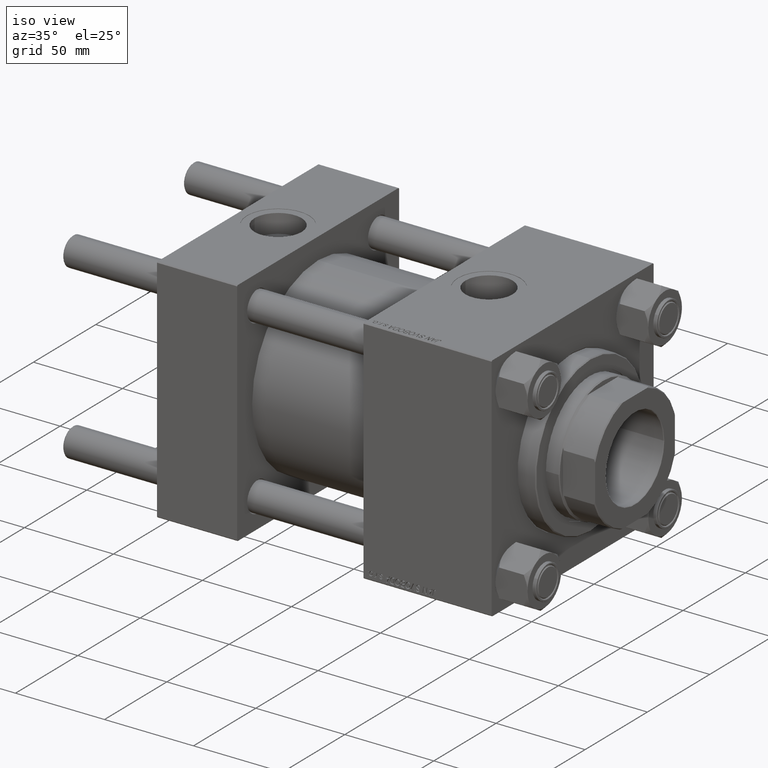
[diagram: clean part render]
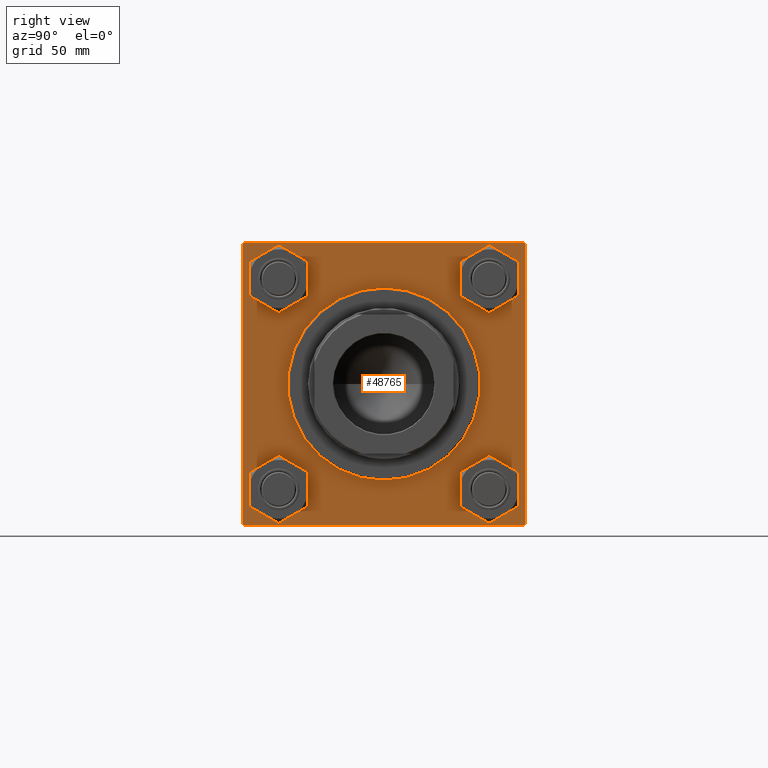
[diagram: tour spotlight — one face highlighted and labeled with its STEP entity id]
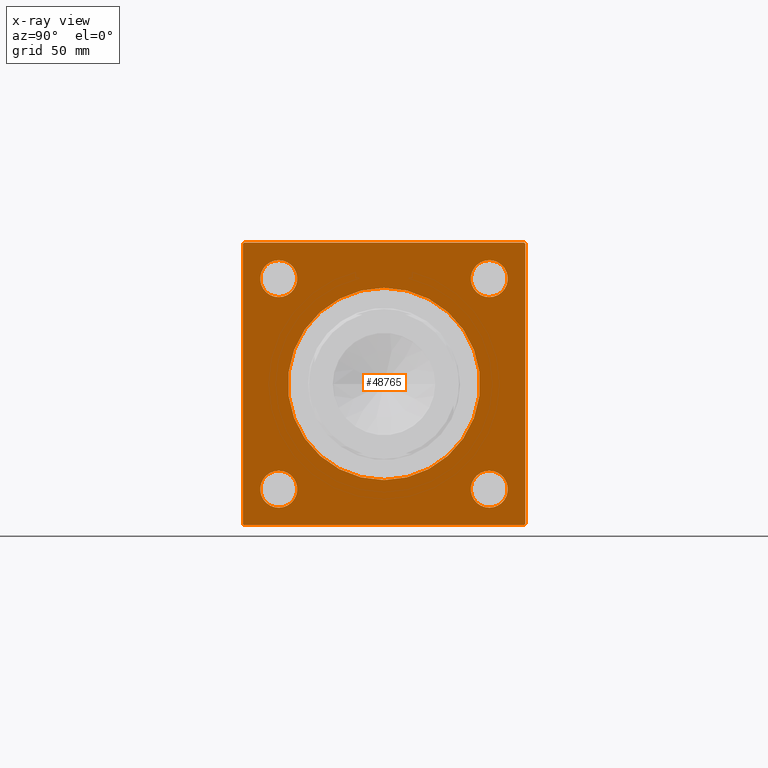
[diagram: x-ray of the same camera — body ghosted, this tour face saturated]
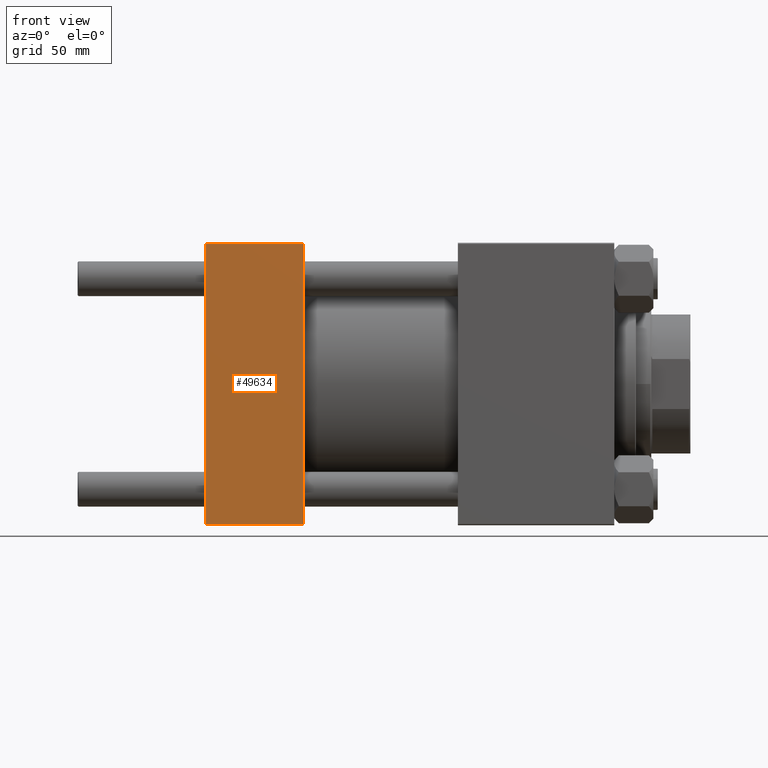
[diagram: tour spotlight — one face highlighted and labeled with its STEP entity id]
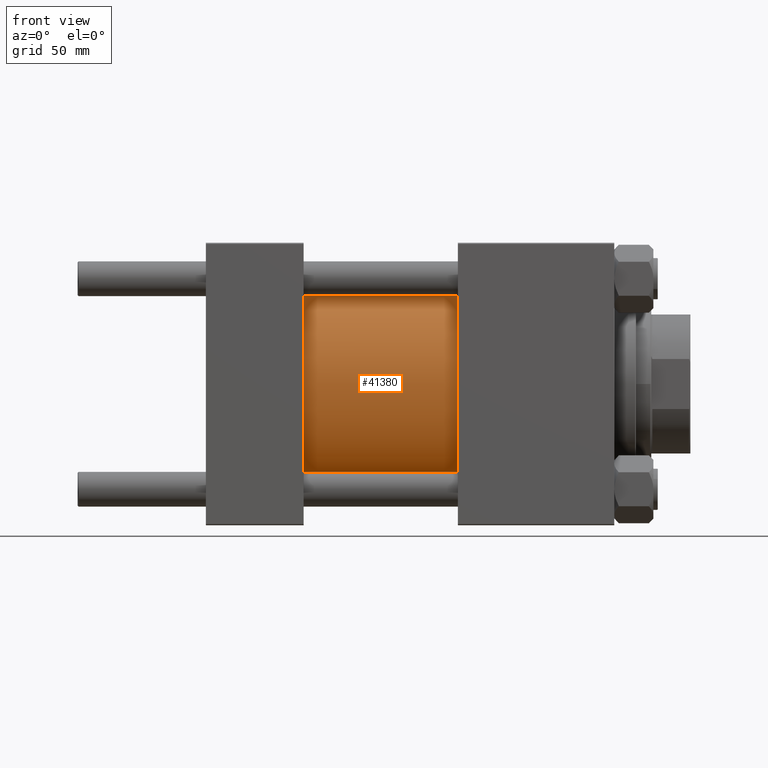
[diagram: tour spotlight — one face highlighted and labeled with its STEP entity id]
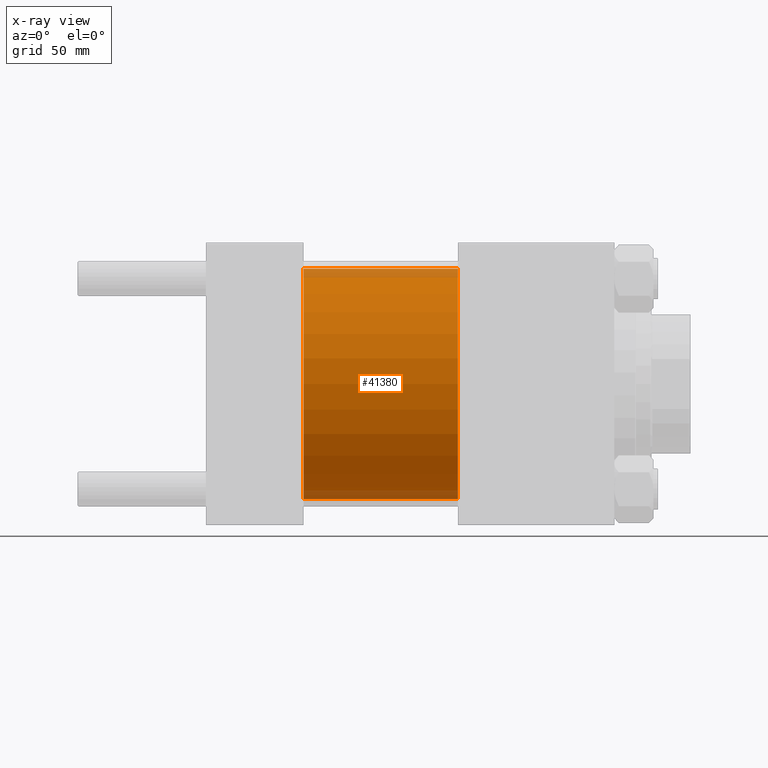
[diagram: x-ray of the same camera — body ghosted, this tour face saturated]
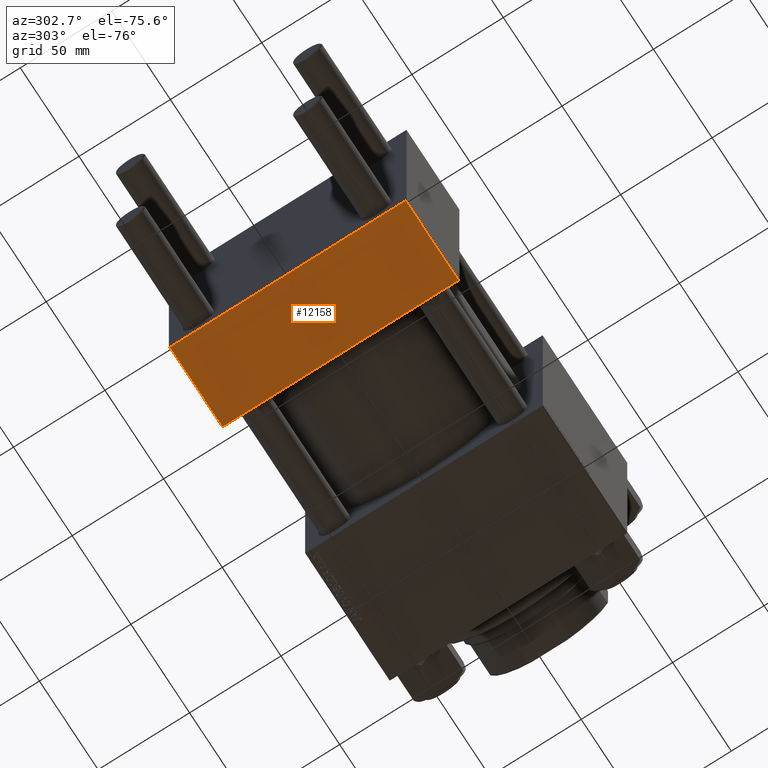
[diagram: tour spotlight — one face highlighted and labeled with its STEP entity id]
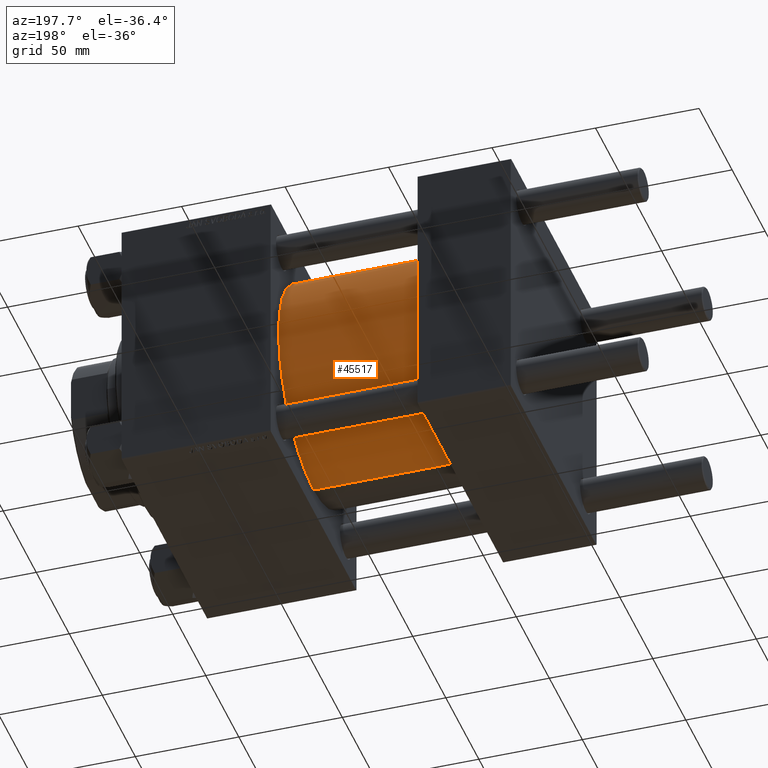
[diagram: tour spotlight — one face highlighted and labeled with its STEP entity id]
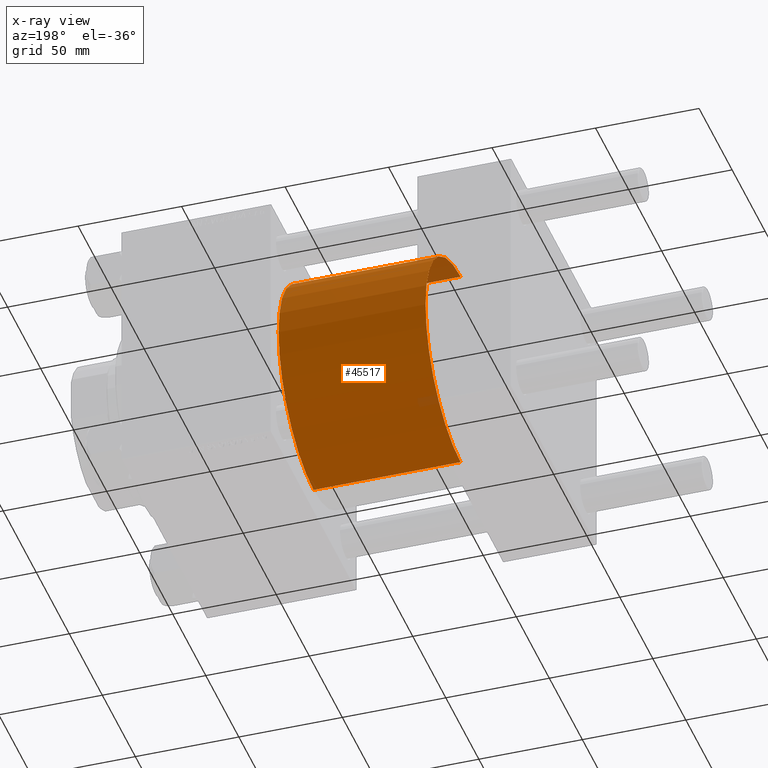
[diagram: x-ray of the same camera — body ghosted, this tour face saturated]
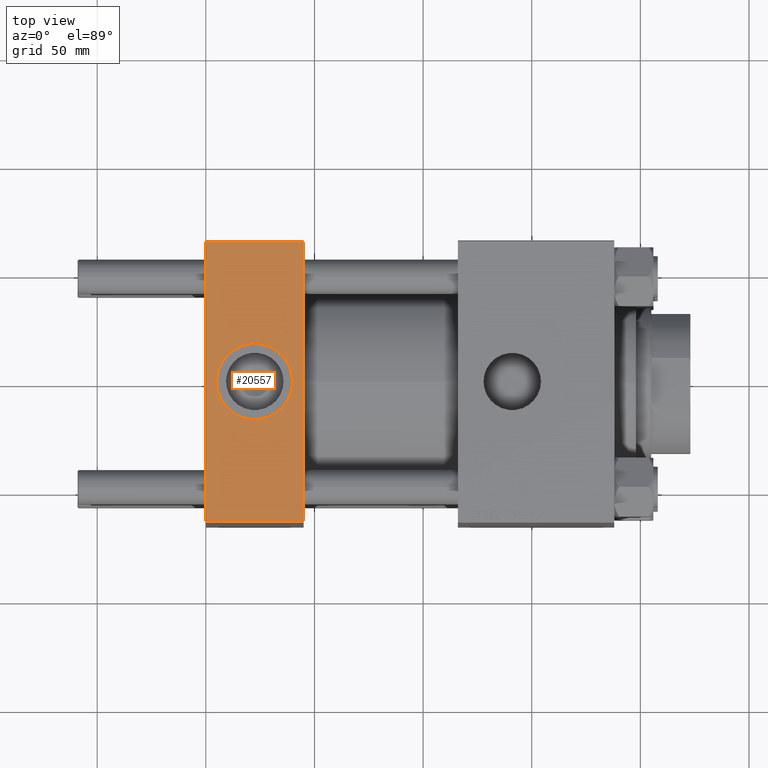
[diagram: tour spotlight — one face highlighted and labeled with its STEP entity id]
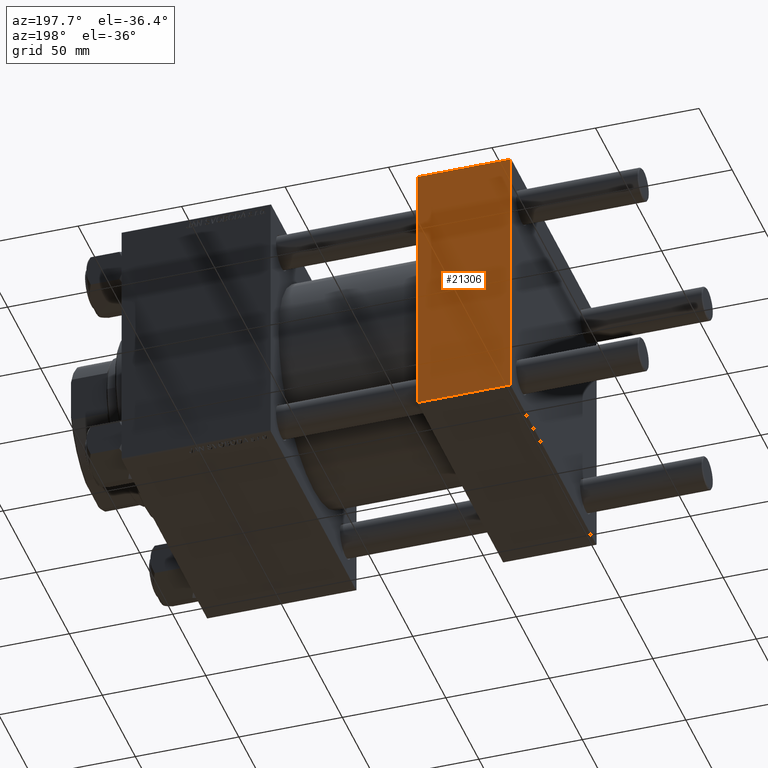
[diagram: tour spotlight — one face highlighted and labeled with its STEP entity id]
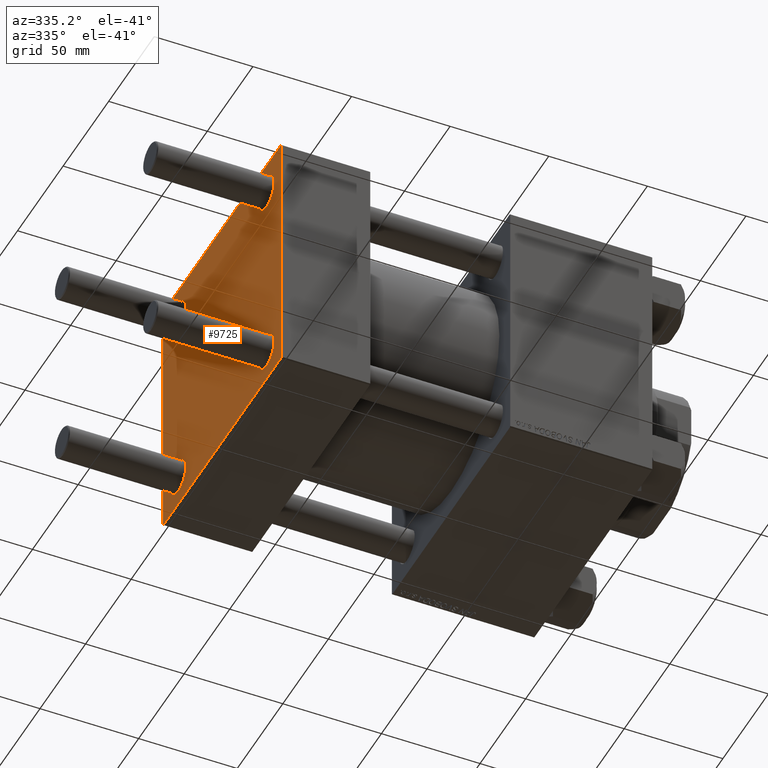
[diagram: tour spotlight — one face highlighted and labeled with its STEP entity id]
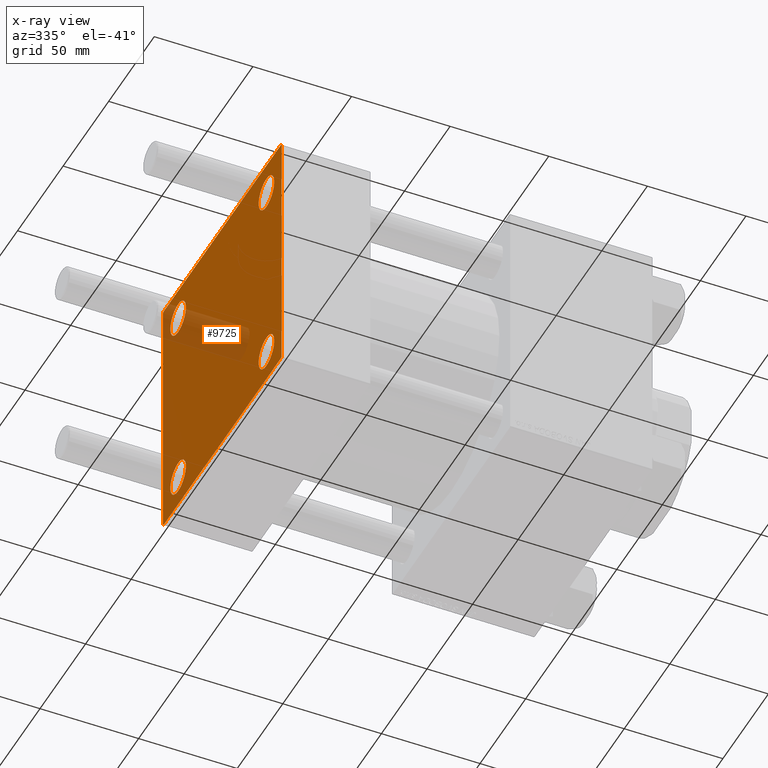
[diagram: x-ray of the same camera — body ghosted, this tour face saturated]
A machine part: a face-by-face anatomy tour. The part has 1182 B-rep faces; the first image is the clean iso view, then the 8 largest visible faces are spotlighted one at a time (largest first), each with its STEP entity span.

Face 1 — right view, entity #48765. An x-ray twin of the same camera follows (body ghosted, this face saturated) — the face is partly hidden behind the body. In plain terms, the highlighted planar face has unit normal (-1, 0, 0).
Definition (entity closure, byte-faithful):
#473 = DIRECTION ( 'NONE',  ( 0.000000000000000000, 0.000000000000000000, 1.000000000000000000 ) ) ;
#1765 = ORIENTED_EDGE ( 'NONE', *, *, #6280, .F. ) ;
#2040 = ORIENTED_EDGE ( 'NONE', *, *, #12327, .T. ) ;
#2387 = CARTESIAN_POINT ( 'NONE',  ( 188.0000000000000000, 65.00000000000002842, -64.50000000000001421 ) ) ;
#2675 = CARTESIAN_POINT ( 'NONE',  ( 188.0000000000000000, -64.99999999999998579, -64.50000000000002842 ) ) ;
#3145 = CARTESIAN_POINT ( 'NONE',  ( 188.0000000000000000, 48.45000000000000995, -48.45000000000001705 ) ) ;
#3459 = LINE ( 'NONE', #18937, #12133 ) ;
#3566 = ORIENTED_EDGE ( 'NONE', *, *, #45806, .T. ) ;
#3901 = CARTESIAN_POINT ( 'NONE',  ( 188.0000000000000000, 48.45000000000000995, -56.94999999999993889 ) ) ;
#3942 = AXIS2_PLACEMENT_3D ( 'NONE', #3145, #34147, #49671 ) ;
#4186 = EDGE_LOOP ( 'NONE', ( #9776, #37897 ) ) ;
#4687 = VECTOR ( 'NONE', #14000, 1000.000000000000000 ) ;
#4843 = VERTEX_POINT ( 'NONE', #13023 ) ;
#4883 = EDGE_CURVE ( 'NONE', #25592, #7312, #33826, .T. ) ;
#5061 = CARTESIAN_POINT ( 'NONE',  ( 188.0000000000000000, 0.000000000000000000, -44.24999999999998579 ) ) ;
#5090 = DIRECTION ( 'NONE',  ( 0.000000000000000000, 0.000000000000000000, 1.000000000000000000 ) ) ;
#5275 = VERTEX_POINT ( 'NONE', #33966 ) ;
#5627 = AXIS2_PLACEMENT_3D ( 'NONE', #40404, #37067, #5090 ) ;
#6280 = EDGE_CURVE ( 'NONE', #47462, #45450, #28749, .T. ) ;
#6312 = EDGE_CURVE ( 'NONE', #35777, #47724, #14370, .T. ) ;
#6435 = CARTESIAN_POINT ( 'NONE',  ( 188.0000000000000000, -64.99999999999998579, 64.50000000000008527 ) ) ;
#7312 = VERTEX_POINT ( 'NONE', #28705 ) ;
#7383 = DIRECTION ( 'NONE',  ( -1.000000000000000000, 0.000000000000000000, -0.000000000000000000 ) ) ;
#7705 = EDGE_CURVE ( 'NONE', #32050, #4843, #26596, .T. ) ;
#8296 = LINE ( 'NONE', #43868, #19649 ) ;
#8313 = EDGE_CURVE ( 'NONE', #26774, #25592, #29708, .T. ) ;
#8563 = ORIENTED_EDGE ( 'NONE', *, *, #6312, .T. ) ;
#8797 = CIRCLE ( 'NONE', #3942, 8.499999999999923617 ) ;
#8997 = CIRCLE ( 'NONE', #32533, 44.24999999999998579 ) ;
#9218 = DIRECTION ( 'NONE',  ( -1.000000000000000000, 0.000000000000000000, -0.000000000000000000 ) ) ;
#9442 = ORIENTED_EDGE ( 'NONE', *, *, #8313, .T. ) ;
#9629 = ORIENTED_EDGE ( 'NONE', *, *, #7705, .T. ) ;
#9776 = ORIENTED_EDGE ( 'NONE', *, *, #14702, .T. ) ;
#10181 = ORIENTED_EDGE ( 'NONE', *, *, #36045, .F. ) ;
#10199 = DIRECTION ( 'NONE',  ( 0.000000000000000000, 0.000000000000000000, 1.000000000000000000 ) ) ;
#10273 = DIRECTION ( 'NONE',  ( -1.000000000000000000, 0.000000000000000000, -0.000000000000000000 ) ) ;
#10363 = AXIS2_PLACEMENT_3D ( 'NONE', #49947, #10273, #26257 ) ;
#10806 = ORIENTED_EDGE ( 'NONE', *, *, #50310, .T. ) ;
#12053 = CARTESIAN_POINT ( 'NONE',  ( 188.0000000000000000, 0.000000000000000000, 0.000000000000000000 ) ) ;
#12133 = VECTOR ( 'NONE', #47163, 999.9999999999998863 ) ;
#12327 = EDGE_CURVE ( 'NONE', #47724, #35777, #29977, .T. ) ;
#12484 = DIRECTION ( 'NONE',  ( -1.000000000000000000, 0.000000000000000000, -0.000000000000000000 ) ) ;
#13023 = CARTESIAN_POINT ( 'NONE',  ( 188.0000000000000000, 48.45000000000000995, -39.95000000000008811 ) ) ;
#13529 = CARTESIAN_POINT ( 'NONE',  ( 188.0000000000000000, -64.50000000000008527, 65.00000000000000000 ) ) ;
#13650 = VECTOR ( 'NONE', #18276, 1000.000000000000000 ) ;
#13754 = DIRECTION ( 'NONE',  ( -1.000000000000000000, 0.000000000000000000, -0.000000000000000000 ) ) ;
#14000 = DIRECTION ( 'NONE',  ( 0.000000000000000000, 0.000000000000000000, -1.000000000000000000 ) ) ;
#14018 = CIRCLE ( 'NONE', #42467, 8.499999999999923617 ) ;
#14259 = CARTESIAN_POINT ( 'NONE',  ( 188.0000000000000000, 65.00000000000002842, 64.50000000000001421 ) ) ;
#14370 = CIRCLE ( 'NONE', #22500, 8.499999999999923617 ) ;
#14702 = EDGE_CURVE ( 'NONE', #41071, #35837, #8997, .T. ) ;
#14983 = DIRECTION ( 'NONE',  ( -0.000000000000000000, 0.000000000000000000, 1.000000000000000000 ) ) ;
#15400 = VECTOR ( 'NONE', #38646, 1000.000000000000000 ) ;
#15403 = AXIS2_PLACEMENT_3D ( 'NONE', #23916, #12484, #27974 ) ;
#15488 = CARTESIAN_POINT ( 'NONE',  ( 188.0000000000000000, 48.45000000000000995, 56.94999999999993889 ) ) ;
#15739 = FACE_BOUND ( 'NONE', #37242, .T. ) ;
#16017 = CARTESIAN_POINT ( 'NONE',  ( 188.0000000000000000, -48.44999999999999574, 39.95000000000010232 ) ) ;
#16656 = EDGE_CURVE ( 'NONE', #35259, #41499, #27553, .T. ) ;
#16874 = CARTESIAN_POINT ( 'NONE',  ( 188.0000000000000000, 64.50000000000005684, 65.00000000000001421 ) ) ;
#16881 = EDGE_LOOP ( 'NONE', ( #48708, #3566 ) ) ;
#17654 = EDGE_CURVE ( 'NONE', #47462, #35259, #8296, .T. ) ;
#18176 = CARTESIAN_POINT ( 'NONE',  ( 188.0000000000000000, -48.44999999999999574, 56.94999999999995310 ) ) ;
#18276 = DIRECTION ( 'NONE',  ( 0.000000000000000000, 0.000000000000000000, -1.000000000000000000 ) ) ;
#18937 = CARTESIAN_POINT ( 'NONE',  ( 188.0000000000000000, -64.99999999999998579, 64.50000000000008527 ) ) ;
#19210 = CARTESIAN_POINT ( 'NONE',  ( 188.0000000000000000, 65.00000000000002842, -64.99999999999998579 ) ) ;
#19649 = VECTOR ( 'NONE', #23780, 1000.000000000000000 ) ;
#19679 = EDGE_CURVE ( 'NONE', #35837, #41071, #40890, .T. ) ;
#20566 = AXIS2_PLACEMENT_3D ( 'NONE', #12053, #35701, #35949 ) ;
#21227 = CARTESIAN_POINT ( 'NONE',  ( 188.0000000000000000, -48.44999999999999574, -56.94999999999995310 ) ) ;
#22012 = DIRECTION ( 'NONE',  ( 0.000000000000000000, -1.000000000000000000, -2.135044278125300850E-16 ) ) ;
#22464 = DIRECTION ( 'NONE',  ( 0.000000000000000000, -1.000000000000000000, -1.067522139062650425E-16 ) ) ;
#22500 = AXIS2_PLACEMENT_3D ( 'NONE', #49811, #13754, #10199 ) ;
#23124 = FACE_BOUND ( 'NONE', #16881, .T. ) ;
#23377 = FACE_OUTER_BOUND ( 'NONE', #27792, .T. ) ;
#23628 = EDGE_CURVE ( 'NONE', #30582, #5275, #14018, .T. ) ;
#23780 = DIRECTION ( 'NONE',  ( 0.000000000000000000, -0.7071067811865279218, 0.7071067811865671127 ) ) ;
#23916 = CARTESIAN_POINT ( 'NONE',  ( 188.0000000000000000, 48.45000000000000995, 48.45000000000001705 ) ) ;
#24071 = VECTOR ( 'NONE', #22012, 1000.000000000000000 ) ;
#24463 = DIRECTION ( 'NONE',  ( 0.000000000000000000, 0.000000000000000000, 1.000000000000000000 ) ) ;
#24772 = ORIENTED_EDGE ( 'NONE', *, *, #43153, .T. ) ;
#25230 = VERTEX_POINT ( 'NONE', #16017 ) ;
#25348 = CARTESIAN_POINT ( 'NONE',  ( 188.0000000000000000, 64.50000000000002842, -64.99999999999998579 ) ) ;
#25399 = CARTESIAN_POINT ( 'NONE',  ( 188.0000000000000000, -64.99999999999998579, 65.00000000000000000 ) ) ;
#25592 = VERTEX_POINT ( 'NONE', #2675 ) ;
#26065 = AXIS2_PLACEMENT_3D ( 'NONE', #38909, #7383, #14983 ) ;
#26257 = DIRECTION ( 'NONE',  ( 0.000000000000000000, 0.000000000000000000, 1.000000000000000000 ) ) ;
#26408 = CARTESIAN_POINT ( 'NONE',  ( 188.0000000000000000, 65.00000000000002842, -64.50000000000001421 ) ) ;
#26596 = CIRCLE ( 'NONE', #10363, 8.499999999999923617 ) ;
#26774 = VERTEX_POINT ( 'NONE', #6435 ) ;
#27553 = LINE ( 'NONE', #43076, #27702 ) ;
#27702 = VECTOR ( 'NONE', #22464, 1000.000000000000000 ) ;
#27792 = EDGE_LOOP ( 'NONE', ( #9442, #39866, #10181, #48739, #1765, #29257, #31678, #33248 ) ) ;
#27974 = DIRECTION ( 'NONE',  ( 0.000000000000000000, 0.000000000000000000, 1.000000000000000000 ) ) ;
#28190 = DIRECTION ( 'NONE',  ( -1.000000000000000000, 0.000000000000000000, -0.000000000000000000 ) ) ;
#28310 = AXIS2_PLACEMENT_3D ( 'NONE', #43972, #28190, #32028 ) ;
#28520 = CARTESIAN_POINT ( 'NONE',  ( 188.0000000000000000, -48.44999999999999574, 48.45000000000003126 ) ) ;
#28705 = CARTESIAN_POINT ( 'NONE',  ( 188.0000000000000000, -64.50000000000002842, -65.00000000000001421 ) ) ;
#28749 = LINE ( 'NONE', #44775, #4687 ) ;
#29257 = ORIENTED_EDGE ( 'NONE', *, *, #17654, .T. ) ;
#29584 = VERTEX_POINT ( 'NONE', #25348 ) ;
#29708 = LINE ( 'NONE', #25399, #13650 ) ;
#29745 = VECTOR ( 'NONE', #45785, 1000.000000000000000 ) ;
#29977 = CIRCLE ( 'NONE', #15403, 8.499999999999923617 ) ;
#30387 = LINE ( 'NONE', #19210, #24071 ) ;
#30582 = VERTEX_POINT ( 'NONE', #21227 ) ;
#30749 = CIRCLE ( 'NONE', #32356, 8.499999999999923617 ) ;
#31205 = CARTESIAN_POINT ( 'NONE',  ( 188.0000000000000000, -48.44999999999999574, -48.45000000000003126 ) ) ;
#31678 = ORIENTED_EDGE ( 'NONE', *, *, #16656, .T. ) ;
#32028 = DIRECTION ( 'NONE',  ( 0.000000000000000000, 0.000000000000000000, 1.000000000000000000 ) ) ;
#32050 = VERTEX_POINT ( 'NONE', #3901 ) ;
#32250 = ORIENTED_EDGE ( 'NONE', *, *, #23628, .T. ) ;
#32356 = AXIS2_PLACEMENT_3D ( 'NONE', #28520, #47620, #24463 ) ;
#32533 = AXIS2_PLACEMENT_3D ( 'NONE', #36664, #9218, #40483 ) ;
#33248 = ORIENTED_EDGE ( 'NONE', *, *, #49402, .T. ) ;
#33826 = LINE ( 'NONE', #34088, #29745 ) ;
#33966 = CARTESIAN_POINT ( 'NONE',  ( 188.0000000000000000, -48.44999999999999574, -39.95000000000010232 ) ) ;
#34088 = CARTESIAN_POINT ( 'NONE',  ( 188.0000000000000000, -64.50000000000002842, -65.00000000000001421 ) ) ;
#34147 = DIRECTION ( 'NONE',  ( -1.000000000000000000, 0.000000000000000000, -0.000000000000000000 ) ) ;
#34321 = LINE ( 'NONE', #26408, #15400 ) ;
#35088 = FACE_BOUND ( 'NONE', #50292, .T. ) ;
#35259 = VERTEX_POINT ( 'NONE', #16874 ) ;
#35678 = CIRCLE ( 'NONE', #5627, 8.499999999999923617 ) ;
#35701 = DIRECTION ( 'NONE',  ( -1.000000000000000000, 0.000000000000000000, -0.000000000000000000 ) ) ;
#35777 = VERTEX_POINT ( 'NONE', #42168 ) ;
#35787 = DIRECTION ( 'NONE',  ( -1.000000000000000000, 0.000000000000000000, -0.000000000000000000 ) ) ;
#35837 = VERTEX_POINT ( 'NONE', #37844 ) ;
#35949 = DIRECTION ( 'NONE',  ( 0.000000000000000000, 0.000000000000000000, 1.000000000000000000 ) ) ;
#36045 = EDGE_CURVE ( 'NONE', #29584, #7312, #30387, .T. ) ;
#36664 = CARTESIAN_POINT ( 'NONE',  ( 188.0000000000000000, 0.000000000000000000, 0.000000000000000000 ) ) ;
#37067 = DIRECTION ( 'NONE',  ( -1.000000000000000000, 0.000000000000000000, -0.000000000000000000 ) ) ;
#37242 = EDGE_LOOP ( 'NONE', ( #9629, #10806 ) ) ;
#37844 = CARTESIAN_POINT ( 'NONE',  ( 188.0000000000000000, 5.419062086227035828E-15, 44.24999999999998579 ) ) ;
#37897 = ORIENTED_EDGE ( 'NONE', *, *, #19679, .T. ) ;
#38152 = PLANE ( 'NONE',  #26065 ) ;
#38398 = FACE_BOUND ( 'NONE', #4186, .T. ) ;
#38646 = DIRECTION ( 'NONE',  ( -0.000000000000000000, 0.7071067811865671127, 0.7071067811865279218 ) ) ;
#38909 = CARTESIAN_POINT ( 'NONE',  ( 188.0000000000000000, 0.000000000000000000, 0.000000000000000000 ) ) ;
#39866 = ORIENTED_EDGE ( 'NONE', *, *, #4883, .T. ) ;
#40404 = CARTESIAN_POINT ( 'NONE',  ( 188.0000000000000000, -48.44999999999999574, -48.45000000000003126 ) ) ;
#40483 = DIRECTION ( 'NONE',  ( 0.000000000000000000, 0.000000000000000000, 1.000000000000000000 ) ) ;
#40890 = CIRCLE ( 'NONE', #20566, 44.24999999999998579 ) ;
#41071 = VERTEX_POINT ( 'NONE', #5061 ) ;
#41081 = EDGE_LOOP ( 'NONE', ( #8563, #2040 ) ) ;
#41499 = VERTEX_POINT ( 'NONE', #13529 ) ;
#42168 = CARTESIAN_POINT ( 'NONE',  ( 188.0000000000000000, 48.45000000000000995, 39.95000000000008811 ) ) ;
#42215 = FACE_BOUND ( 'NONE', #41081, .T. ) ;
#42467 = AXIS2_PLACEMENT_3D ( 'NONE', #31205, #35787, #473 ) ;
#42656 = VERTEX_POINT ( 'NONE', #18176 ) ;
#43076 = CARTESIAN_POINT ( 'NONE',  ( 188.0000000000000000, 65.00000000000002842, 65.00000000000001421 ) ) ;
#43153 = EDGE_CURVE ( 'NONE', #5275, #30582, #35678, .T. ) ;
#43868 = CARTESIAN_POINT ( 'NONE',  ( 188.0000000000000000, 64.50000000000005684, 65.00000000000001421 ) ) ;
#43972 = CARTESIAN_POINT ( 'NONE',  ( 188.0000000000000000, -48.44999999999999574, 48.45000000000003126 ) ) ;
#44775 = CARTESIAN_POINT ( 'NONE',  ( 188.0000000000000000, 65.00000000000002842, 65.00000000000001421 ) ) ;
#44833 = EDGE_CURVE ( 'NONE', #25230, #42656, #30749, .T. ) ;
#45450 = VERTEX_POINT ( 'NONE', #2387 ) ;
#45785 = DIRECTION ( 'NONE',  ( 0.000000000000000000, 0.7071067811865279218, -0.7071067811865672237 ) ) ;
#45806 = EDGE_CURVE ( 'NONE', #42656, #25230, #48641, .T. ) ;
#47163 = DIRECTION ( 'NONE',  ( -0.000000000000000000, -0.7071067811865376918, -0.7071067811865574537 ) ) ;
#47462 = VERTEX_POINT ( 'NONE', #14259 ) ;
#47620 = DIRECTION ( 'NONE',  ( -1.000000000000000000, 0.000000000000000000, -0.000000000000000000 ) ) ;
#47674 = EDGE_CURVE ( 'NONE', #29584, #45450, #34321, .T. ) ;
#47724 = VERTEX_POINT ( 'NONE', #15488 ) ;
#48641 = CIRCLE ( 'NONE', #28310, 8.499999999999923617 ) ;
#48708 = ORIENTED_EDGE ( 'NONE', *, *, #44833, .T. ) ;
#48739 = ORIENTED_EDGE ( 'NONE', *, *, #47674, .T. ) ;
#48765 = ADVANCED_FACE ( 'NONE', ( #35088, #15739, #42215, #23124, #38398, #23377 ), #38152, .F. ) ;
#49402 = EDGE_CURVE ( 'NONE', #41499, #26774, #3459, .T. ) ;
#49671 = DIRECTION ( 'NONE',  ( 0.000000000000000000, 0.000000000000000000, 1.000000000000000000 ) ) ;
#49811 = CARTESIAN_POINT ( 'NONE',  ( 188.0000000000000000, 48.45000000000000995, 48.45000000000001705 ) ) ;
#49947 = CARTESIAN_POINT ( 'NONE',  ( 188.0000000000000000, 48.45000000000000995, -48.45000000000001705 ) ) ;
#50292 = EDGE_LOOP ( 'NONE', ( #32250, #24772 ) ) ;
#50310 = EDGE_CURVE ( 'NONE', #4843, #32050, #8797, .T. ) ;

Face 2 — front view, entity #49634. In plain terms, the highlighted planar face has unit normal (0, 1, 0).
Definition (entity closure, byte-faithful):
#887 = LINE ( 'NONE', #16849, #25686 ) ;
#4280 = ORIENTED_EDGE ( 'NONE', *, *, #49050, .T. ) ;
#5674 = ORIENTED_EDGE ( 'NONE', *, *, #34232, .F. ) ;
#6253 = VERTEX_POINT ( 'NONE', #28013 ) ;
#7197 = FACE_OUTER_BOUND ( 'NONE', #24103, .T. ) ;
#7577 = CARTESIAN_POINT ( 'NONE',  ( 45.00000000000000000, -65.00000000000000000, 65.00000000000000000 ) ) ;
#10009 = ORIENTED_EDGE ( 'NONE', *, *, #30995, .T. ) ;
#11298 = AXIS2_PLACEMENT_3D ( 'NONE', #14291, #37698, #15050 ) ;
#14291 = CARTESIAN_POINT ( 'NONE',  ( 45.00000000000000000, -65.00000000000000000, 65.00000000000000000 ) ) ;
#15050 = DIRECTION ( 'NONE',  ( 0.000000000000000000, -0.000000000000000000, 1.000000000000000000 ) ) ;
#15402 = VERTEX_POINT ( 'NONE', #34488 ) ;
#16038 = CARTESIAN_POINT ( 'NONE',  ( 45.00000000000000000, -65.00000000000000000, 64.50000000000000000 ) ) ;
#16608 = LINE ( 'NONE', #32134, #38543 ) ;
#16849 = CARTESIAN_POINT ( 'NONE',  ( 45.00000000000000000, -65.00000000000000000, 64.50000000000000000 ) ) ;
#22814 = LINE ( 'NONE', #7577, #31313 ) ;
#24103 = EDGE_LOOP ( 'NONE', ( #4280, #10009, #5674, #39591 ) ) ;
#25686 = VECTOR ( 'NONE', #28779, 1000.000000000000000 ) ;
#26107 = CARTESIAN_POINT ( 'NONE',  ( 0.000000000000000000, -65.00000000000000000, 65.00000000000000000 ) ) ;
#28013 = CARTESIAN_POINT ( 'NONE',  ( 0.000000000000000000, -65.00000000000000000, 64.50000000000000000 ) ) ;
#28779 = DIRECTION ( 'NONE',  ( -1.000000000000000000, 0.000000000000000000, 0.000000000000000000 ) ) ;
#30691 = DIRECTION ( 'NONE',  ( 0.000000000000000000, 0.000000000000000000, -1.000000000000000000 ) ) ;
#30995 = EDGE_CURVE ( 'NONE', #42861, #15402, #16608, .T. ) ;
#31313 = VECTOR ( 'NONE', #30691, 1000.000000000000000 ) ;
#31587 = VECTOR ( 'NONE', #42146, 1000.000000000000000 ) ;
#32134 = CARTESIAN_POINT ( 'NONE',  ( 45.00000000000000000, -65.00000000000000000, -64.49999999999991473 ) ) ;
#34232 = EDGE_CURVE ( 'NONE', #41781, #15402, #22814, .T. ) ;
#34488 = CARTESIAN_POINT ( 'NONE',  ( 45.00000000000000000, -65.00000000000000000, -64.49999999999991473 ) ) ;
#37456 = EDGE_CURVE ( 'NONE', #41781, #6253, #887, .T. ) ;
#37698 = DIRECTION ( 'NONE',  ( -0.000000000000000000, 1.000000000000000000, 0.000000000000000000 ) ) ;
#38543 = VECTOR ( 'NONE', #47650, 1000.000000000000000 ) ;
#39591 = ORIENTED_EDGE ( 'NONE', *, *, #37456, .T. ) ;
#40527 = CARTESIAN_POINT ( 'NONE',  ( 0.000000000000000000, -65.00000000000000000, -64.49999999999991473 ) ) ;
#41781 = VERTEX_POINT ( 'NONE', #16038 ) ;
#42146 = DIRECTION ( 'NONE',  ( 0.000000000000000000, 0.000000000000000000, -1.000000000000000000 ) ) ;
#42861 = VERTEX_POINT ( 'NONE', #40527 ) ;
#47650 = DIRECTION ( 'NONE',  ( 1.000000000000000000, 0.000000000000000000, 0.000000000000000000 ) ) ;
#49050 = EDGE_CURVE ( 'NONE', #6253, #42861, #49789, .T. ) ;
#49634 = ADVANCED_FACE ( 'NONE', ( #7197 ), #49915, .F. ) ;
#49789 = LINE ( 'NONE', #26107, #31587 ) ;
#49915 = PLANE ( 'NONE',  #11298 ) ;

Face 3 — front view, entity #41380. An x-ray twin of the same camera follows (body ghosted, this face saturated) — the face is partly hidden behind the body. In plain terms, the highlighted cylindrical surface (partial cylindrical patch) has radius 53 mm, axis along (-1, -0, -0).
Definition (entity closure, byte-faithful):
#1357 = CARTESIAN_POINT ( 'NONE',  ( 115.9999999999999858, 6.490628035480973107E-15, -53.00000000000000711 ) ) ;
#2262 = LINE ( 'NONE', #13937, #9531 ) ;
#2455 = EDGE_CURVE ( 'NONE', #48616, #23415, #2262, .T. ) ;
#2477 = ORIENTED_EDGE ( 'NONE', *, *, #44802, .F. ) ;
#2510 = CARTESIAN_POINT ( 'NONE',  ( 45.00000000000000000, 0.000000000000000000, 53.00000000000000711 ) ) ;
#4198 = DIRECTION ( 'NONE',  ( 1.000000000000000000, 0.000000000000000000, 0.000000000000000000 ) ) ;
#5849 = AXIS2_PLACEMENT_3D ( 'NONE', #15086, #4198, #42568 ) ;
#8083 = VERTEX_POINT ( 'NONE', #17324 ) ;
#9531 = VECTOR ( 'NONE', #28934, 1000.000000000000000 ) ;
#10616 = CIRCLE ( 'NONE', #30042, 53.00000000000000711 ) ;
#11387 = ORIENTED_EDGE ( 'NONE', *, *, #2455, .T. ) ;
#13937 = CARTESIAN_POINT ( 'NONE',  ( 115.9999999999999858, 0.000000000000000000, 53.00000000000000711 ) ) ;
#14846 = EDGE_CURVE ( 'NONE', #23415, #8083, #10616, .T. ) ;
#15086 = CARTESIAN_POINT ( 'NONE',  ( 115.9999999999999858, 0.000000000000000000, 0.000000000000000000 ) ) ;
#15414 = CARTESIAN_POINT ( 'NONE',  ( 115.9999999999999858, 0.000000000000000000, 0.000000000000000000 ) ) ;
#16024 = VERTEX_POINT ( 'NONE', #42947 ) ;
#17314 = DIRECTION ( 'NONE',  ( -1.000000000000000000, -0.000000000000000000, -0.000000000000000000 ) ) ;
#17324 = CARTESIAN_POINT ( 'NONE',  ( 45.00000000000000000, 6.490628035480973107E-15, -53.00000000000000711 ) ) ;
#19732 = FACE_OUTER_BOUND ( 'NONE', #41673, .T. ) ;
#21364 = EDGE_CURVE ( 'NONE', #48616, #16024, #42400, .T. ) ;
#21887 = DIRECTION ( 'NONE',  ( 0.000000000000000000, 0.000000000000000000, 1.000000000000000000 ) ) ;
#23415 = VERTEX_POINT ( 'NONE', #2510 ) ;
#24162 = ORIENTED_EDGE ( 'NONE', *, *, #14846, .T. ) ;
#28098 = DIRECTION ( 'NONE',  ( 0.000000000000000000, 0.000000000000000000, 1.000000000000000000 ) ) ;
#28934 = DIRECTION ( 'NONE',  ( -1.000000000000000000, -0.000000000000000000, -0.000000000000000000 ) ) ;
#30042 = AXIS2_PLACEMENT_3D ( 'NONE', #33344, #48860, #21887 ) ;
#31935 = DIRECTION ( 'NONE',  ( -1.000000000000000000, -0.000000000000000000, -0.000000000000000000 ) ) ;
#33344 = CARTESIAN_POINT ( 'NONE',  ( 45.00000000000000000, 0.000000000000000000, 0.000000000000000000 ) ) ;
#35502 = CYLINDRICAL_SURFACE ( 'NONE', #38065, 53.00000000000000711 ) ;
#38065 = AXIS2_PLACEMENT_3D ( 'NONE', #15414, #31935, #28098 ) ;
#40484 = LINE ( 'NONE', #1357, #48607 ) ;
#41380 = ADVANCED_FACE ( 'NONE', ( #19732 ), #35502, .T. ) ;
#41673 = EDGE_LOOP ( 'NONE', ( #2477, #46837, #11387, #24162 ) ) ;
#42400 = CIRCLE ( 'NONE', #5849, 53.00000000000000711 ) ;
#42568 = DIRECTION ( 'NONE',  ( 0.000000000000000000, 0.000000000000000000, -1.000000000000000000 ) ) ;
#42947 = CARTESIAN_POINT ( 'NONE',  ( 115.9999999999999858, 6.490628035480973107E-15, -53.00000000000000711 ) ) ;
#44802 = EDGE_CURVE ( 'NONE', #16024, #8083, #40484, .T. ) ;
#46837 = ORIENTED_EDGE ( 'NONE', *, *, #21364, .F. ) ;
#48607 = VECTOR ( 'NONE', #17314, 1000.000000000000000 ) ;
#48616 = VERTEX_POINT ( 'NONE', #49085 ) ;
#48860 = DIRECTION ( 'NONE',  ( 1.000000000000000000, -0.000000000000000000, 0.000000000000000000 ) ) ;
#49085 = CARTESIAN_POINT ( 'NONE',  ( 115.9999999999999858, 0.000000000000000000, 53.00000000000000711 ) ) ;

Face 4 — auxiliary view, entity #12158. In plain terms, the highlighted planar face has unit normal (0, 0, -1).
Definition (entity closure, byte-faithful):
#237 = LINE ( 'NONE', #42676, #12039 ) ;
#817 = AXIS2_PLACEMENT_3D ( 'NONE', #4937, #19667, #35184 ) ;
#2517 = ORIENTED_EDGE ( 'NONE', *, *, #32352, .T. ) ;
#2864 = VECTOR ( 'NONE', #42726, 1000.000000000000000 ) ;
#3438 = EDGE_CURVE ( 'NONE', #11257, #34951, #26040, .T. ) ;
#4937 = CARTESIAN_POINT ( 'NONE',  ( 45.00000000000000000, 65.00000000000000000, -64.99999999999998579 ) ) ;
#5389 = EDGE_LOOP ( 'NONE', ( #29906, #26169, #2517, #27030 ) ) ;
#6575 = CARTESIAN_POINT ( 'NONE',  ( 45.00000000000000000, 64.49999999999997158, -64.99999999999998579 ) ) ;
#9399 = EDGE_CURVE ( 'NONE', #11257, #29107, #237, .T. ) ;
#11257 = VERTEX_POINT ( 'NONE', #21582 ) ;
#11321 = CARTESIAN_POINT ( 'NONE',  ( 45.00000000000000000, 64.49999999999997158, -64.99999999999998579 ) ) ;
#12039 = VECTOR ( 'NONE', #50069, 1000.000000000000000 ) ;
#12158 = ADVANCED_FACE ( 'NONE', ( #43310 ), #24216, .T. ) ;
#18280 = CARTESIAN_POINT ( 'NONE',  ( 0.000000000000000000, -64.49999999999994316, -65.00000000000000000 ) ) ;
#18396 = VERTEX_POINT ( 'NONE', #41613 ) ;
#19667 = DIRECTION ( 'NONE',  ( 0.000000000000000000, 1.067522139062650548E-16, -1.000000000000000000 ) ) ;
#20015 = VECTOR ( 'NONE', #38778, 1000.000000000000000 ) ;
#21582 = CARTESIAN_POINT ( 'NONE',  ( 0.000000000000000000, 64.49999999999997158, -64.99999999999998579 ) ) ;
#22613 = EDGE_CURVE ( 'NONE', #18396, #29107, #34893, .T. ) ;
#22885 = LINE ( 'NONE', #38410, #2864 ) ;
#24216 = PLANE ( 'NONE',  #817 ) ;
#26040 = LINE ( 'NONE', #11321, #20015 ) ;
#26169 = ORIENTED_EDGE ( 'NONE', *, *, #3438, .T. ) ;
#27030 = ORIENTED_EDGE ( 'NONE', *, *, #22613, .T. ) ;
#29107 = VERTEX_POINT ( 'NONE', #18280 ) ;
#29906 = ORIENTED_EDGE ( 'NONE', *, *, #9399, .F. ) ;
#32352 = EDGE_CURVE ( 'NONE', #34951, #18396, #22885, .T. ) ;
#34893 = LINE ( 'NONE', #42263, #47299 ) ;
#34951 = VERTEX_POINT ( 'NONE', #6575 ) ;
#35184 = DIRECTION ( 'NONE',  ( 0.000000000000000000, 1.000000000000000000, 1.067522139062650548E-16 ) ) ;
#38410 = CARTESIAN_POINT ( 'NONE',  ( 45.00000000000000000, 65.00000000000000000, -64.99999999999998579 ) ) ;
#38778 = DIRECTION ( 'NONE',  ( 1.000000000000000000, 0.000000000000000000, 0.000000000000000000 ) ) ;
#41613 = CARTESIAN_POINT ( 'NONE',  ( 45.00000000000000000, -64.49999999999994316, -65.00000000000000000 ) ) ;
#42263 = CARTESIAN_POINT ( 'NONE',  ( 0.000000000000000000, -64.49999999999994316, -65.00000000000000000 ) ) ;
#42676 = CARTESIAN_POINT ( 'NONE',  ( 0.000000000000000000, 65.00000000000000000, -64.99999999999998579 ) ) ;
#42726 = DIRECTION ( 'NONE',  ( 0.000000000000000000, -1.000000000000000000, -1.067522139062650425E-16 ) ) ;
#43310 = FACE_OUTER_BOUND ( 'NONE', #5389, .T. ) ;
#46830 = DIRECTION ( 'NONE',  ( -1.000000000000000000, 0.000000000000000000, 0.000000000000000000 ) ) ;
#47299 = VECTOR ( 'NONE', #46830, 1000.000000000000000 ) ;
#50069 = DIRECTION ( 'NONE',  ( 0.000000000000000000, -1.000000000000000000, -1.067522139062650425E-16 ) ) ;

Face 5 — auxiliary view, entity #45517. An x-ray twin of the same camera follows (body ghosted, this face saturated) — the face is partly hidden behind the body. In plain terms, the highlighted cylindrical surface (partial cylindrical patch) has radius 53 mm, axis along (-1, -0, -0).
Definition (entity closure, byte-faithful):
#69 = EDGE_CURVE ( 'NONE', #8083, #23415, #43544, .T. ) ;
#1357 = CARTESIAN_POINT ( 'NONE',  ( 115.9999999999999858, 6.490628035480973107E-15, -53.00000000000000711 ) ) ;
#2262 = LINE ( 'NONE', #13937, #9531 ) ;
#2455 = EDGE_CURVE ( 'NONE', #48616, #23415, #2262, .T. ) ;
#2510 = CARTESIAN_POINT ( 'NONE',  ( 45.00000000000000000, 0.000000000000000000, 53.00000000000000711 ) ) ;
#2801 = ORIENTED_EDGE ( 'NONE', *, *, #2455, .F. ) ;
#5383 = EDGE_LOOP ( 'NONE', ( #26308, #29575, #45946, #2801 ) ) ;
#5457 = DIRECTION ( 'NONE',  ( 0.000000000000000000, 0.000000000000000000, 1.000000000000000000 ) ) ;
#8083 = VERTEX_POINT ( 'NONE', #17324 ) ;
#8486 = DIRECTION ( 'NONE',  ( 0.000000000000000000, 0.000000000000000000, -1.000000000000000000 ) ) ;
#9531 = VECTOR ( 'NONE', #28934, 1000.000000000000000 ) ;
#11264 = DIRECTION ( 'NONE',  ( 1.000000000000000000, -0.000000000000000000, 0.000000000000000000 ) ) ;
#13937 = CARTESIAN_POINT ( 'NONE',  ( 115.9999999999999858, 0.000000000000000000, 53.00000000000000711 ) ) ;
#16024 = VERTEX_POINT ( 'NONE', #42947 ) ;
#16348 = DIRECTION ( 'NONE',  ( 1.000000000000000000, 0.000000000000000000, 0.000000000000000000 ) ) ;
#17314 = DIRECTION ( 'NONE',  ( -1.000000000000000000, -0.000000000000000000, -0.000000000000000000 ) ) ;
#17324 = CARTESIAN_POINT ( 'NONE',  ( 45.00000000000000000, 6.490628035480973107E-15, -53.00000000000000711 ) ) ;
#18864 = EDGE_CURVE ( 'NONE', #16024, #48616, #46570, .T. ) ;
#21420 = FACE_OUTER_BOUND ( 'NONE', #5383, .T. ) ;
#21588 = AXIS2_PLACEMENT_3D ( 'NONE', #34403, #11264, #22944 ) ;
#22944 = DIRECTION ( 'NONE',  ( 0.000000000000000000, 0.000000000000000000, 1.000000000000000000 ) ) ;
#23415 = VERTEX_POINT ( 'NONE', #2510 ) ;
#24987 = CYLINDRICAL_SURFACE ( 'NONE', #43790, 53.00000000000000711 ) ;
#26308 = ORIENTED_EDGE ( 'NONE', *, *, #18864, .F. ) ;
#28934 = DIRECTION ( 'NONE',  ( -1.000000000000000000, -0.000000000000000000, -0.000000000000000000 ) ) ;
#29575 = ORIENTED_EDGE ( 'NONE', *, *, #44802, .T. ) ;
#34403 = CARTESIAN_POINT ( 'NONE',  ( 45.00000000000000000, 0.000000000000000000, 0.000000000000000000 ) ) ;
#40276 = DIRECTION ( 'NONE',  ( -1.000000000000000000, -0.000000000000000000, -0.000000000000000000 ) ) ;
#40484 = LINE ( 'NONE', #1357, #48607 ) ;
#40528 = CARTESIAN_POINT ( 'NONE',  ( 115.9999999999999858, 0.000000000000000000, 0.000000000000000000 ) ) ;
#42815 = CARTESIAN_POINT ( 'NONE',  ( 115.9999999999999858, 0.000000000000000000, 0.000000000000000000 ) ) ;
#42947 = CARTESIAN_POINT ( 'NONE',  ( 115.9999999999999858, 6.490628035480973107E-15, -53.00000000000000711 ) ) ;
#43544 = CIRCLE ( 'NONE', #21588, 53.00000000000000711 ) ;
#43790 = AXIS2_PLACEMENT_3D ( 'NONE', #40528, #40276, #5457 ) ;
#44802 = EDGE_CURVE ( 'NONE', #16024, #8083, #40484, .T. ) ;
#45517 = ADVANCED_FACE ( 'NONE', ( #21420 ), #24987, .T. ) ;
#45767 = AXIS2_PLACEMENT_3D ( 'NONE', #42815, #16348, #8486 ) ;
#45946 = ORIENTED_EDGE ( 'NONE', *, *, #69, .T. ) ;
#46570 = CIRCLE ( 'NONE', #45767, 53.00000000000000711 ) ;
#48607 = VECTOR ( 'NONE', #17314, 1000.000000000000000 ) ;
#48616 = VERTEX_POINT ( 'NONE', #49085 ) ;
#49085 = CARTESIAN_POINT ( 'NONE',  ( 115.9999999999999858, 0.000000000000000000, 53.00000000000000711 ) ) ;

Face 6 — top view, entity #20557. In plain terms, the highlighted planar face has unit normal (0, 0, -1).
Definition (entity closure, byte-faithful):
#331 = ORIENTED_EDGE ( 'NONE', *, *, #36030, .F. ) ;
#632 = VECTOR ( 'NONE', #7186, 1000.000000000000000 ) ;
#883 = VECTOR ( 'NONE', #37713, 1000.000000000000000 ) ;
#1259 = ORIENTED_EDGE ( 'NONE', *, *, #38581, .T. ) ;
#2148 = FACE_OUTER_BOUND ( 'NONE', #38344, .T. ) ;
#2251 = CARTESIAN_POINT ( 'NONE',  ( 0.000000000000000000, 64.49999999999997158, 65.00000000000001421 ) ) ;
#3664 = LINE ( 'NONE', #14814, #883 ) ;
#3885 = CARTESIAN_POINT ( 'NONE',  ( 45.00000000000000000, -64.49999999999997158, 65.00000000000000000 ) ) ;
#5033 = AXIS2_PLACEMENT_3D ( 'NONE', #25757, #29821, #29318 ) ;
#6284 = EDGE_CURVE ( 'NONE', #43144, #10044, #17813, .T. ) ;
#6474 = FACE_BOUND ( 'NONE', #41680, .T. ) ;
#7099 = CARTESIAN_POINT ( 'NONE',  ( 0.000000000000000000, -64.49999999999997158, 65.00000000000000000 ) ) ;
#7186 = DIRECTION ( 'NONE',  ( 1.000000000000000000, 0.000000000000000000, 0.000000000000000000 ) ) ;
#9142 = LINE ( 'NONE', #13681, #45971 ) ;
#9945 = DIRECTION ( 'NONE',  ( 0.000000000000000000, -1.000000000000000000, -1.067522139062650425E-16 ) ) ;
#10044 = VERTEX_POINT ( 'NONE', #7099 ) ;
#10254 = ORIENTED_EDGE ( 'NONE', *, *, #34812, .F. ) ;
#11485 = VERTEX_POINT ( 'NONE', #23410 ) ;
#12756 = VECTOR ( 'NONE', #9945, 1000.000000000000000 ) ;
#12782 = ORIENTED_EDGE ( 'NONE', *, *, #14514, .T. ) ;
#13681 = CARTESIAN_POINT ( 'NONE',  ( 45.00000000000000000, 65.00000000000000000, 65.00000000000001421 ) ) ;
#13826 = PLANE ( 'NONE',  #5033 ) ;
#14128 = DIRECTION ( 'NONE',  ( 1.000000000000000000, 0.000000000000000000, 0.000000000000000000 ) ) ;
#14514 = EDGE_CURVE ( 'NONE', #32621, #43144, #3664, .T. ) ;
#14814 = CARTESIAN_POINT ( 'NONE',  ( 0.000000000000000000, 64.49999999999997158, 65.00000000000001421 ) ) ;
#14883 = CARTESIAN_POINT ( 'NONE',  ( 22.50000000000000000, -8.673617379884035472E-15, 65.00000000000000000 ) ) ;
#15299 = CARTESIAN_POINT ( 'NONE',  ( 4.999999999999997335, -6.530485481376167224E-15, 65.00000000000000000 ) ) ;
#15317 = DIRECTION ( 'NONE',  ( 1.000000000000000000, 0.000000000000000000, 0.000000000000000000 ) ) ;
#17813 = LINE ( 'NONE', #34792, #12756 ) ;
#18213 = CARTESIAN_POINT ( 'NONE',  ( 40.00000000000000000, -8.673617379884035472E-15, 65.00000000000000000 ) ) ;
#19241 = VERTEX_POINT ( 'NONE', #18213 ) ;
#20557 = ADVANCED_FACE ( 'NONE', ( #6474, #2148 ), #13826, .F. ) ;
#20810 = DIRECTION ( 'NONE',  ( 0.000000000000000000, -1.000000000000000000, -1.067522139062650425E-16 ) ) ;
#22510 = DIRECTION ( 'NONE',  ( 0.000000000000000000, 0.000000000000000000, 1.000000000000000000 ) ) ;
#22915 = ORIENTED_EDGE ( 'NONE', *, *, #43916, .F. ) ;
#23410 = CARTESIAN_POINT ( 'NONE',  ( 45.00000000000000000, -64.49999999999997158, 65.00000000000000000 ) ) ;
#23831 = CARTESIAN_POINT ( 'NONE',  ( 45.00000000000000000, 64.49999999999997158, 65.00000000000001421 ) ) ;
#25757 = CARTESIAN_POINT ( 'NONE',  ( 45.00000000000000000, 65.00000000000000000, 65.00000000000001421 ) ) ;
#26491 = DIRECTION ( 'NONE',  ( 0.000000000000000000, 0.000000000000000000, 1.000000000000000000 ) ) ;
#26632 = AXIS2_PLACEMENT_3D ( 'NONE', #35166, #26491, #15317 ) ;
#26990 = LINE ( 'NONE', #3885, #632 ) ;
#29318 = DIRECTION ( 'NONE',  ( 0.000000000000000000, 1.000000000000000000, 1.067522139062650548E-16 ) ) ;
#29821 = DIRECTION ( 'NONE',  ( 0.000000000000000000, 1.067522139062650548E-16, -1.000000000000000000 ) ) ;
#31058 = VERTEX_POINT ( 'NONE', #15299 ) ;
#32621 = VERTEX_POINT ( 'NONE', #23831 ) ;
#33254 = CIRCLE ( 'NONE', #26632, 17.50000000000000000 ) ;
#34792 = CARTESIAN_POINT ( 'NONE',  ( 0.000000000000000000, 65.00000000000000000, 65.00000000000001421 ) ) ;
#34812 = EDGE_CURVE ( 'NONE', #32621, #11485, #9142, .T. ) ;
#35166 = CARTESIAN_POINT ( 'NONE',  ( 22.50000000000000000, -8.673617379884035472E-15, 65.00000000000000000 ) ) ;
#36030 = EDGE_CURVE ( 'NONE', #31058, #19241, #46008, .T. ) ;
#37713 = DIRECTION ( 'NONE',  ( -1.000000000000000000, 0.000000000000000000, 0.000000000000000000 ) ) ;
#38344 = EDGE_LOOP ( 'NONE', ( #44668, #1259, #10254, #12782 ) ) ;
#38581 = EDGE_CURVE ( 'NONE', #10044, #11485, #26990, .T. ) ;
#41680 = EDGE_LOOP ( 'NONE', ( #22915, #331 ) ) ;
#42751 = AXIS2_PLACEMENT_3D ( 'NONE', #14883, #22510, #14128 ) ;
#43144 = VERTEX_POINT ( 'NONE', #2251 ) ;
#43916 = EDGE_CURVE ( 'NONE', #19241, #31058, #33254, .T. ) ;
#44668 = ORIENTED_EDGE ( 'NONE', *, *, #6284, .T. ) ;
#45971 = VECTOR ( 'NONE', #20810, 1000.000000000000000 ) ;
#46008 = CIRCLE ( 'NONE', #42751, 17.50000000000000000 ) ;

Face 7 — auxiliary view, entity #21306. In plain terms, the highlighted planar face has unit normal (0, 1, 0).
Definition (entity closure, byte-faithful):
#3834 = ORIENTED_EDGE ( 'NONE', *, *, #8466, .F. ) ;
#3842 = CARTESIAN_POINT ( 'NONE',  ( 0.000000000000000000, 65.00000000000000000, 64.49999999999998579 ) ) ;
#5558 = DIRECTION ( 'NONE',  ( 0.000000000000000000, 0.000000000000000000, -1.000000000000000000 ) ) ;
#7768 = CARTESIAN_POINT ( 'NONE',  ( 45.00000000000000000, 65.00000000000000000, 64.49999999999998579 ) ) ;
#8039 = EDGE_LOOP ( 'NONE', ( #9493, #30817, #3834, #38432 ) ) ;
#8466 = EDGE_CURVE ( 'NONE', #32300, #49990, #47763, .T. ) ;
#9493 = ORIENTED_EDGE ( 'NONE', *, *, #27366, .T. ) ;
#11274 = VECTOR ( 'NONE', #30803, 1000.000000000000000 ) ;
#14589 = CARTESIAN_POINT ( 'NONE',  ( 45.00000000000000000, 65.00000000000000000, 65.00000000000001421 ) ) ;
#18184 = CARTESIAN_POINT ( 'NONE',  ( 0.000000000000000000, 65.00000000000000000, -64.49999999999995737 ) ) ;
#18399 = FACE_OUTER_BOUND ( 'NONE', #8039, .T. ) ;
#18663 = DIRECTION ( 'NONE',  ( -0.000000000000000000, 1.000000000000000000, 0.000000000000000000 ) ) ;
#18845 = CARTESIAN_POINT ( 'NONE',  ( 45.00000000000000000, 65.00000000000000000, -64.49999999999995737 ) ) ;
#19453 = DIRECTION ( 'NONE',  ( 1.000000000000000000, 0.000000000000000000, 0.000000000000000000 ) ) ;
#21306 = ADVANCED_FACE ( 'NONE', ( #18399 ), #33922, .T. ) ;
#23681 = VERTEX_POINT ( 'NONE', #39106 ) ;
#25082 = VECTOR ( 'NONE', #19453, 1000.000000000000000 ) ;
#26727 = LINE ( 'NONE', #42258, #11274 ) ;
#27065 = LINE ( 'NONE', #7768, #25082 ) ;
#27366 = EDGE_CURVE ( 'NONE', #23681, #47526, #49973, .T. ) ;
#27570 = CARTESIAN_POINT ( 'NONE',  ( 45.00000000000000000, 65.00000000000000000, 65.00000000000001421 ) ) ;
#30803 = DIRECTION ( 'NONE',  ( -1.000000000000000000, 0.000000000000000000, 0.000000000000000000 ) ) ;
#30817 = ORIENTED_EDGE ( 'NONE', *, *, #41590, .T. ) ;
#32300 = VERTEX_POINT ( 'NONE', #3842 ) ;
#32497 = CARTESIAN_POINT ( 'NONE',  ( 0.000000000000000000, 65.00000000000000000, 65.00000000000001421 ) ) ;
#33922 = PLANE ( 'NONE',  #44807 ) ;
#34177 = DIRECTION ( 'NONE',  ( 0.000000000000000000, -0.000000000000000000, 1.000000000000000000 ) ) ;
#34200 = DIRECTION ( 'NONE',  ( 0.000000000000000000, 0.000000000000000000, -1.000000000000000000 ) ) ;
#37691 = VECTOR ( 'NONE', #34200, 1000.000000000000000 ) ;
#38432 = ORIENTED_EDGE ( 'NONE', *, *, #42738, .T. ) ;
#39106 = CARTESIAN_POINT ( 'NONE',  ( 45.00000000000000000, 65.00000000000000000, 64.49999999999998579 ) ) ;
#41590 = EDGE_CURVE ( 'NONE', #47526, #49990, #26727, .T. ) ;
#42078 = VECTOR ( 'NONE', #5558, 1000.000000000000000 ) ;
#42258 = CARTESIAN_POINT ( 'NONE',  ( 45.00000000000000000, 65.00000000000000000, -64.49999999999995737 ) ) ;
#42738 = EDGE_CURVE ( 'NONE', #32300, #23681, #27065, .T. ) ;
#44807 = AXIS2_PLACEMENT_3D ( 'NONE', #14589, #18663, #34177 ) ;
#47526 = VERTEX_POINT ( 'NONE', #18845 ) ;
#47763 = LINE ( 'NONE', #32497, #42078 ) ;
#49973 = LINE ( 'NONE', #27570, #37691 ) ;
#49990 = VERTEX_POINT ( 'NONE', #18184 ) ;

Face 8 — auxiliary view, entity #9725. An x-ray twin of the same camera follows (body ghosted, this face saturated) — the face is partly hidden behind the body. In plain terms, the highlighted planar face has unit normal (-1, 0, 0).
Definition (entity closure, byte-faithful):
#237 = LINE ( 'NONE', #42676, #12039 ) ;
#360 = DIRECTION ( 'NONE',  ( -0.000000000000000000, -0.7071067811865474617, -0.7071067811865474617 ) ) ;
#743 = AXIS2_PLACEMENT_3D ( 'NONE', #47431, #12846, #13334 ) ;
#946 = VERTEX_POINT ( 'NONE', #43463 ) ;
#1136 = DIRECTION ( 'NONE',  ( 0.000000000000000000, 0.000000000000000000, 1.000000000000000000 ) ) ;
#1179 = LINE ( 'NONE', #24279, #48849 ) ;
#1771 = DIRECTION ( 'NONE',  ( 1.000000000000000000, -0.000000000000000000, 0.000000000000000000 ) ) ;
#2251 = CARTESIAN_POINT ( 'NONE',  ( 0.000000000000000000, 64.49999999999997158, 65.00000000000001421 ) ) ;
#2529 = DIRECTION ( 'NONE',  ( 0.000000000000000000, 0.7071067811865474617, -0.7071067811865474617 ) ) ;
#2937 = AXIS2_PLACEMENT_3D ( 'NONE', #31535, #47056, #12705 ) ;
#3188 = CIRCLE ( 'NONE', #37289, 8.500000000000007105 ) ;
#3391 = AXIS2_PLACEMENT_3D ( 'NONE', #10154, #22336, #41164 ) ;
#3842 = CARTESIAN_POINT ( 'NONE',  ( 0.000000000000000000, 65.00000000000000000, 64.49999999999998579 ) ) ;
#4352 = CARTESIAN_POINT ( 'NONE',  ( 0.000000000000000000, 48.45000000000000995, -48.45000000000001705 ) ) ;
#4956 = DIRECTION ( 'NONE',  ( 1.000000000000000000, -0.000000000000000000, 0.000000000000000000 ) ) ;
#4994 = DIRECTION ( 'NONE',  ( -0.000000000000000000, 0.7071067811865672237, 0.7071067811865279218 ) ) ;
#5558 = DIRECTION ( 'NONE',  ( 0.000000000000000000, 0.000000000000000000, -1.000000000000000000 ) ) ;
#5563 = EDGE_CURVE ( 'NONE', #31655, #8050, #28131, .T. ) ;
#6074 = DIRECTION ( 'NONE',  ( 0.000000000000000000, 0.000000000000000000, 1.000000000000000000 ) ) ;
#6083 = CARTESIAN_POINT ( 'NONE',  ( 0.000000000000000000, 64.74999999999998579, 64.74999999999998579 ) ) ;
#6253 = VERTEX_POINT ( 'NONE', #28013 ) ;
#6284 = EDGE_CURVE ( 'NONE', #43144, #10044, #17813, .T. ) ;
#6399 = DIRECTION ( 'NONE',  ( 0.000000000000000000, 0.000000000000000000, 1.000000000000000000 ) ) ;
#7099 = CARTESIAN_POINT ( 'NONE',  ( 0.000000000000000000, -64.49999999999997158, 65.00000000000000000 ) ) ;
#8050 = VERTEX_POINT ( 'NONE', #13523 ) ;
#8232 = LINE ( 'NONE', #35173, #16049 ) ;
#8442 = CARTESIAN_POINT ( 'NONE',  ( 0.000000000000000000, 48.45000000000000995, -56.95000000000002416 ) ) ;
#8466 = EDGE_CURVE ( 'NONE', #32300, #49990, #47763, .T. ) ;
#8508 = ORIENTED_EDGE ( 'NONE', *, *, #20402, .T. ) ;
#8582 = EDGE_LOOP ( 'NONE', ( #33614, #42175, #28841, #44731, #32136, #8508, #25984, #43250 ) ) ;
#9042 = FACE_BOUND ( 'NONE', #16360, .T. ) ;
#9160 = EDGE_CURVE ( 'NONE', #43144, #32300, #37848, .T. ) ;
#9399 = EDGE_CURVE ( 'NONE', #11257, #29107, #237, .T. ) ;
#9725 = ADVANCED_FACE ( 'NONE', ( #16398, #9042, #16890, #36489, #31677 ), #47683, .T. ) ;
#9881 = CARTESIAN_POINT ( 'NONE',  ( 0.000000000000000000, -48.44999999999999574, 48.45000000000003126 ) ) ;
#9945 = DIRECTION ( 'NONE',  ( 0.000000000000000000, -1.000000000000000000, -1.067522139062650425E-16 ) ) ;
#10044 = VERTEX_POINT ( 'NONE', #7099 ) ;
#10154 = CARTESIAN_POINT ( 'NONE',  ( 0.000000000000000000, 48.45000000000000995, -48.45000000000001705 ) ) ;
#11257 = VERTEX_POINT ( 'NONE', #21582 ) ;
#12039 = VECTOR ( 'NONE', #50069, 1000.000000000000000 ) ;
#12705 = DIRECTION ( 'NONE',  ( 0.000000000000000000, 0.000000000000000000, 1.000000000000000000 ) ) ;
#12756 = VECTOR ( 'NONE', #9945, 1000.000000000000000 ) ;
#12846 = DIRECTION ( 'NONE',  ( -1.000000000000000000, 0.000000000000000000, -0.000000000000000000 ) ) ;
#12908 = CIRCLE ( 'NONE', #19394, 8.500000000000007105 ) ;
#13334 = DIRECTION ( 'NONE',  ( -0.000000000000000000, 0.000000000000000000, 1.000000000000000000 ) ) ;
#13441 = DIRECTION ( 'NONE',  ( 0.000000000000000000, 0.000000000000000000, 1.000000000000000000 ) ) ;
#13523 = CARTESIAN_POINT ( 'NONE',  ( 0.000000000000000000, 48.45000000000000995, 39.95000000000000284 ) ) ;
#14143 = EDGE_CURVE ( 'NONE', #16943, #41310, #38204, .T. ) ;
#14198 = EDGE_CURVE ( 'NONE', #8050, #31655, #30893, .T. ) ;
#14307 = CARTESIAN_POINT ( 'NONE',  ( 0.000000000000000000, 48.45000000000000995, -39.95000000000000284 ) ) ;
#15439 = CARTESIAN_POINT ( 'NONE',  ( 0.000000000000000000, -64.75000000000176215, -64.74999999999816680 ) ) ;
#15788 = CARTESIAN_POINT ( 'NONE',  ( 0.000000000000000000, -48.44999999999999574, 39.95000000000001705 ) ) ;
#16049 = VECTOR ( 'NONE', #360, 1000.000000000000114 ) ;
#16271 = AXIS2_PLACEMENT_3D ( 'NONE', #43727, #24639, #32282 ) ;
#16360 = EDGE_LOOP ( 'NONE', ( #27748, #25882 ) ) ;
#16398 = FACE_BOUND ( 'NONE', #19510, .T. ) ;
#16890 = FACE_BOUND ( 'NONE', #31963, .T. ) ;
#16943 = VERTEX_POINT ( 'NONE', #27205 ) ;
#17073 = DIRECTION ( 'NONE',  ( 1.000000000000000000, -0.000000000000000000, 0.000000000000000000 ) ) ;
#17813 = LINE ( 'NONE', #34792, #12756 ) ;
#18184 = CARTESIAN_POINT ( 'NONE',  ( 0.000000000000000000, 65.00000000000000000, -64.49999999999995737 ) ) ;
#18280 = CARTESIAN_POINT ( 'NONE',  ( 0.000000000000000000, -64.49999999999994316, -65.00000000000000000 ) ) ;
#18702 = AXIS2_PLACEMENT_3D ( 'NONE', #47395, #4956, #1136 ) ;
#19394 = AXIS2_PLACEMENT_3D ( 'NONE', #24128, #1771, #13441 ) ;
#19510 = EDGE_LOOP ( 'NONE', ( #33606, #29757 ) ) ;
#20402 = EDGE_CURVE ( 'NONE', #6253, #10044, #1179, .T. ) ;
#20779 = EDGE_CURVE ( 'NONE', #37838, #24854, #49697, .T. ) ;
#21582 = CARTESIAN_POINT ( 'NONE',  ( 0.000000000000000000, 64.49999999999997158, -64.99999999999998579 ) ) ;
#21623 = CARTESIAN_POINT ( 'NONE',  ( 0.000000000000000000, 48.45000000000000995, 48.45000000000001705 ) ) ;
#21767 = VECTOR ( 'NONE', #2529, 1000.000000000000114 ) ;
#22336 = DIRECTION ( 'NONE',  ( 1.000000000000000000, -0.000000000000000000, 0.000000000000000000 ) ) ;
#22661 = ORIENTED_EDGE ( 'NONE', *, *, #45601, .T. ) ;
#24128 = CARTESIAN_POINT ( 'NONE',  ( 0.000000000000000000, -48.44999999999999574, 48.45000000000003126 ) ) ;
#24279 = CARTESIAN_POINT ( 'NONE',  ( -0.000000000000000000, -64.74999999999819522, 64.75000000000179057 ) ) ;
#24639 = DIRECTION ( 'NONE',  ( 1.000000000000000000, -0.000000000000000000, 0.000000000000000000 ) ) ;
#24854 = VERTEX_POINT ( 'NONE', #14307 ) ;
#25882 = ORIENTED_EDGE ( 'NONE', *, *, #35645, .T. ) ;
#25984 = ORIENTED_EDGE ( 'NONE', *, *, #6284, .F. ) ;
#26107 = CARTESIAN_POINT ( 'NONE',  ( 0.000000000000000000, -65.00000000000000000, 65.00000000000000000 ) ) ;
#27205 = CARTESIAN_POINT ( 'NONE',  ( 0.000000000000000000, -48.44999999999999574, -39.95000000000001705 ) ) ;
#27234 = ORIENTED_EDGE ( 'NONE', *, *, #14198, .T. ) ;
#27568 = ORIENTED_EDGE ( 'NONE', *, *, #5563, .T. ) ;
#27748 = ORIENTED_EDGE ( 'NONE', *, *, #14143, .T. ) ;
#28013 = CARTESIAN_POINT ( 'NONE',  ( 0.000000000000000000, -65.00000000000000000, 64.50000000000000000 ) ) ;
#28131 = CIRCLE ( 'NONE', #46042, 8.500000000000007105 ) ;
#28354 = VECTOR ( 'NONE', #38340, 1000.000000000000000 ) ;
#28841 = ORIENTED_EDGE ( 'NONE', *, *, #9399, .T. ) ;
#29107 = VERTEX_POINT ( 'NONE', #18280 ) ;
#29655 = EDGE_LOOP ( 'NONE', ( #27568, #27234 ) ) ;
#29757 = ORIENTED_EDGE ( 'NONE', *, *, #45769, .T. ) ;
#30893 = CIRCLE ( 'NONE', #16271, 8.500000000000007105 ) ;
#31535 = CARTESIAN_POINT ( 'NONE',  ( 0.000000000000000000, -48.44999999999999574, -48.45000000000003126 ) ) ;
#31587 = VECTOR ( 'NONE', #42146, 1000.000000000000000 ) ;
#31655 = VERTEX_POINT ( 'NONE', #46780 ) ;
#31677 = FACE_OUTER_BOUND ( 'NONE', #8582, .T. ) ;
#31963 = EDGE_LOOP ( 'NONE', ( #22661, #33430 ) ) ;
#32075 = CIRCLE ( 'NONE', #42646, 8.500000000000007105 ) ;
#32136 = ORIENTED_EDGE ( 'NONE', *, *, #49050, .F. ) ;
#32282 = DIRECTION ( 'NONE',  ( 0.000000000000000000, 0.000000000000000000, 1.000000000000000000 ) ) ;
#32300 = VERTEX_POINT ( 'NONE', #3842 ) ;
#32492 = EDGE_CURVE ( 'NONE', #946, #41540, #32075, .T. ) ;
#32497 = CARTESIAN_POINT ( 'NONE',  ( 0.000000000000000000, 65.00000000000000000, 65.00000000000001421 ) ) ;
#33430 = ORIENTED_EDGE ( 'NONE', *, *, #20779, .T. ) ;
#33606 = ORIENTED_EDGE ( 'NONE', *, *, #32492, .T. ) ;
#33614 = ORIENTED_EDGE ( 'NONE', *, *, #8466, .T. ) ;
#34745 = CARTESIAN_POINT ( 'NONE',  ( 0.000000000000000000, -48.44999999999999574, -56.95000000000003837 ) ) ;
#34792 = CARTESIAN_POINT ( 'NONE',  ( 0.000000000000000000, 65.00000000000000000, 65.00000000000001421 ) ) ;
#35173 = CARTESIAN_POINT ( 'NONE',  ( 0.000000000000000000, 64.74999999999997158, -64.74999999999997158 ) ) ;
#35645 = EDGE_CURVE ( 'NONE', #41310, #16943, #43542, .T. ) ;
#36489 = FACE_BOUND ( 'NONE', #29655, .T. ) ;
#37289 = AXIS2_PLACEMENT_3D ( 'NONE', #4352, #38665, #39172 ) ;
#37838 = VERTEX_POINT ( 'NONE', #8442 ) ;
#37848 = LINE ( 'NONE', #6083, #21767 ) ;
#38204 = CIRCLE ( 'NONE', #18702, 8.500000000000007105 ) ;
#38340 = DIRECTION ( 'NONE',  ( 0.000000000000000000, -0.7071067811865279218, 0.7071067811865671127 ) ) ;
#38592 = LINE ( 'NONE', #15439, #28354 ) ;
#38665 = DIRECTION ( 'NONE',  ( 1.000000000000000000, -0.000000000000000000, 0.000000000000000000 ) ) ;
#39172 = DIRECTION ( 'NONE',  ( 0.000000000000000000, 0.000000000000000000, 1.000000000000000000 ) ) ;
#39547 = EDGE_CURVE ( 'NONE', #49990, #11257, #8232, .T. ) ;
#40527 = CARTESIAN_POINT ( 'NONE',  ( 0.000000000000000000, -65.00000000000000000, -64.49999999999991473 ) ) ;
#40896 = DIRECTION ( 'NONE',  ( 1.000000000000000000, -0.000000000000000000, 0.000000000000000000 ) ) ;
#41164 = DIRECTION ( 'NONE',  ( 0.000000000000000000, 0.000000000000000000, 1.000000000000000000 ) ) ;
#41310 = VERTEX_POINT ( 'NONE', #34745 ) ;
#41540 = VERTEX_POINT ( 'NONE', #15788 ) ;
#42078 = VECTOR ( 'NONE', #5558, 1000.000000000000000 ) ;
#42146 = DIRECTION ( 'NONE',  ( 0.000000000000000000, 0.000000000000000000, -1.000000000000000000 ) ) ;
#42175 = ORIENTED_EDGE ( 'NONE', *, *, #39547, .T. ) ;
#42484 = EDGE_CURVE ( 'NONE', #29107, #42861, #38592, .T. ) ;
#42646 = AXIS2_PLACEMENT_3D ( 'NONE', #9881, #40896, #6074 ) ;
#42676 = CARTESIAN_POINT ( 'NONE',  ( 0.000000000000000000, 65.00000000000000000, -64.99999999999998579 ) ) ;
#42861 = VERTEX_POINT ( 'NONE', #40527 ) ;
#43144 = VERTEX_POINT ( 'NONE', #2251 ) ;
#43250 = ORIENTED_EDGE ( 'NONE', *, *, #9160, .T. ) ;
#43463 = CARTESIAN_POINT ( 'NONE',  ( 0.000000000000000000, -48.44999999999999574, 56.95000000000003837 ) ) ;
#43542 = CIRCLE ( 'NONE', #2937, 8.500000000000007105 ) ;
#43727 = CARTESIAN_POINT ( 'NONE',  ( 0.000000000000000000, 48.45000000000000995, 48.45000000000001705 ) ) ;
#44731 = ORIENTED_EDGE ( 'NONE', *, *, #42484, .T. ) ;
#45601 = EDGE_CURVE ( 'NONE', #24854, #37838, #3188, .T. ) ;
#45769 = EDGE_CURVE ( 'NONE', #41540, #946, #12908, .T. ) ;
#46042 = AXIS2_PLACEMENT_3D ( 'NONE', #21623, #17073, #6399 ) ;
#46780 = CARTESIAN_POINT ( 'NONE',  ( 0.000000000000000000, 48.45000000000000995, 56.95000000000002416 ) ) ;
#47056 = DIRECTION ( 'NONE',  ( 1.000000000000000000, -0.000000000000000000, 0.000000000000000000 ) ) ;
#47395 = CARTESIAN_POINT ( 'NONE',  ( 0.000000000000000000, -48.44999999999999574, -48.45000000000003126 ) ) ;
#47431 = CARTESIAN_POINT ( 'NONE',  ( 0.000000000000000000, 0.000000000000000000, 0.000000000000000000 ) ) ;
#47683 = PLANE ( 'NONE',  #743 ) ;
#47763 = LINE ( 'NONE', #32497, #42078 ) ;
#48849 = VECTOR ( 'NONE', #4994, 1000.000000000000000 ) ;
#49050 = EDGE_CURVE ( 'NONE', #6253, #42861, #49789, .T. ) ;
#49697 = CIRCLE ( 'NONE', #3391, 8.500000000000007105 ) ;
#49789 = LINE ( 'NONE', #26107, #31587 ) ;
#49990 = VERTEX_POINT ( 'NONE', #18184 ) ;
#50069 = DIRECTION ( 'NONE',  ( 0.000000000000000000, -1.000000000000000000, -1.067522139062650425E-16 ) ) ;